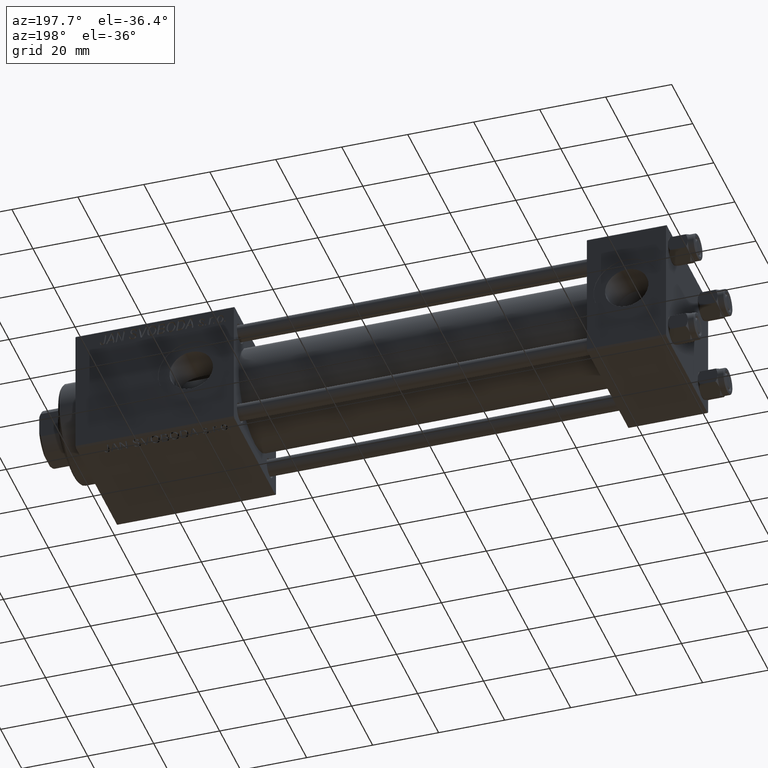
[diagram: clean part render]
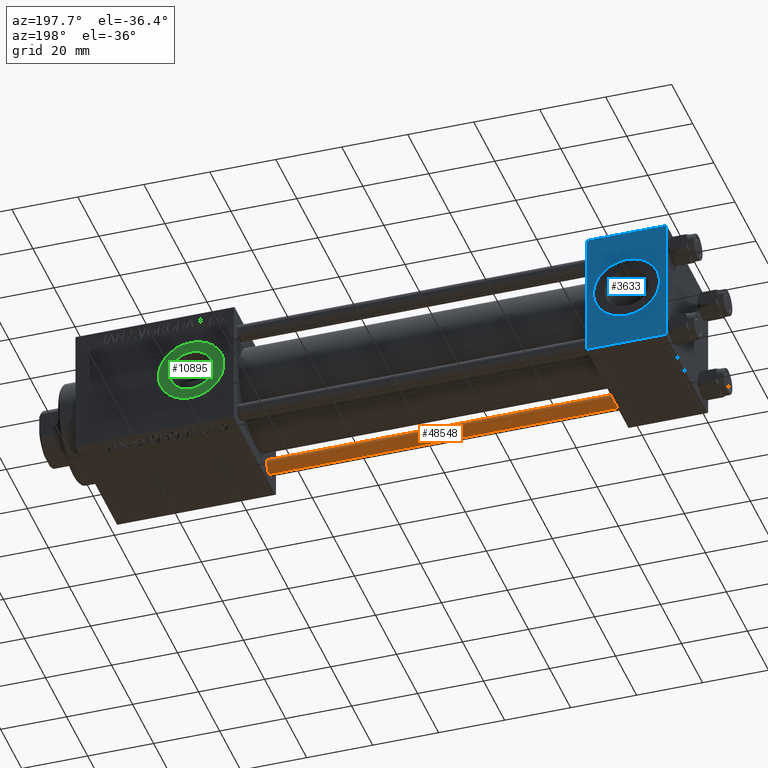
[diagram: same view with three faces highlighted in distinct colors, each labeled with its STEP entity id]
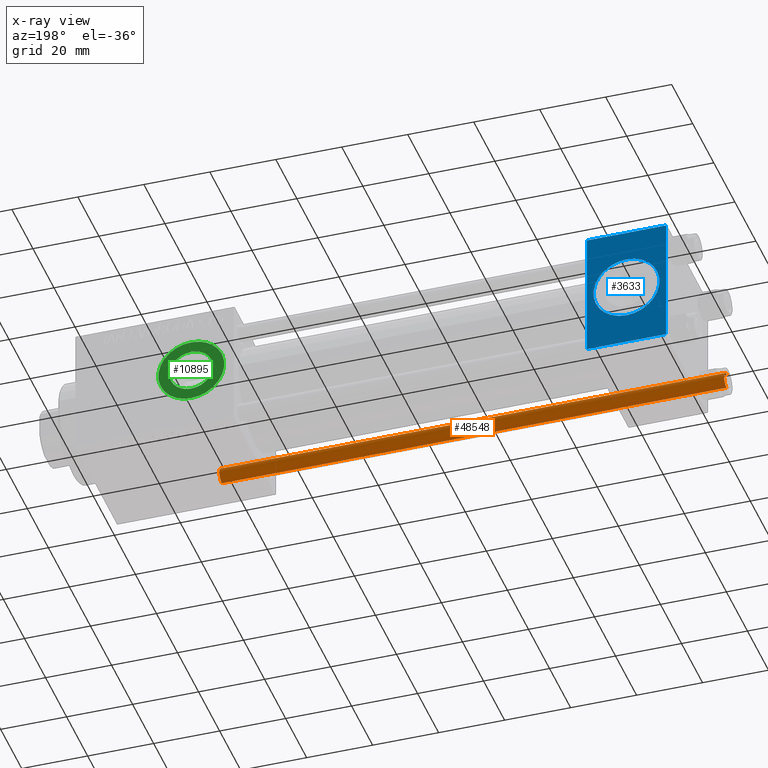
[diagram: x-ray of the same camera — body ghosted, the three highlighted faces saturated]
A machine part, auxiliary view with three faces highlighted in distinct colors.
The next image is the same camera in x-ray (body ghosted, the three faces saturated) — at least one of them is partly hidden behind the body in this view.
Their STEP definitions:

[orange] entity #48548 — the highlighted cylindrical surface (edge-blend (fillet) strip) has radius 2.5 mm, axis along (-1, -0, -0).
#17 = DIRECTION ( 'NONE',  ( -0.000000000000000000, -0.000000000000000000, -1.000000000000000000 ) ) ;
#1397 = EDGE_CURVE ( 'NONE', #17357, #28319, #20029, .T. ) ;
#2868 = ORIENTED_EDGE ( 'NONE', *, *, #3064, .T. ) ;
#3064 = EDGE_CURVE ( 'NONE', #17357, #41914, #39486, .T. ) ;
#4119 = EDGE_LOOP ( 'NONE', ( #27180, #2868, #19624, #48652 ) ) ;
#12100 = CARTESIAN_POINT ( 'NONE',  ( -2.500000000000000000, 0.000000000000000000, 154.0000000000000000 ) ) ;
#12159 = CARTESIAN_POINT ( 'NONE',  ( 0.000000000000000000, 0.000000000000000000, 154.0000000000000000 ) ) ;
#16716 = VECTOR ( 'NONE', #51994, 1000.000000000000000 ) ;
#17357 = VERTEX_POINT ( 'NONE', #46383 ) ;
#19624 = ORIENTED_EDGE ( 'NONE', *, *, #42432, .T. ) ;
#19762 = DIRECTION ( 'NONE',  ( -0.000000000000000000, -0.000000000000000000, -1.000000000000000000 ) ) ;
#20029 = LINE ( 'NONE', #48565, #16716 ) ;
#21790 = CIRCLE ( 'NONE', #51310, 2.500000000000000000 ) ;
#23476 = LINE ( 'NONE', #12100, #36938 ) ;
#24699 = CARTESIAN_POINT ( 'NONE',  ( -2.500000000000000000, 0.000000000000000000, 153.5000000000000284 ) ) ;
#25279 = DIRECTION ( 'NONE',  ( -0.000000000000000000, -0.000000000000000000, 1.000000000000000000 ) ) ;
#26803 = AXIS2_PLACEMENT_3D ( 'NONE', #47094, #42351, #42092 ) ;
#27180 = ORIENTED_EDGE ( 'NONE', *, *, #1397, .F. ) ;
#28283 = DIRECTION ( 'NONE',  ( -1.000000000000000000, 0.000000000000000000, 0.000000000000000000 ) ) ;
#28319 = VERTEX_POINT ( 'NONE', #38297 ) ;
#28529 = CYLINDRICAL_SURFACE ( 'NONE', #38552, 2.500000000000000000 ) ;
#29230 = DIRECTION ( 'NONE',  ( 1.000000000000000000, 0.000000000000000000, 0.000000000000000000 ) ) ;
#36938 = VECTOR ( 'NONE', #19762, 1000.000000000000000 ) ;
#38289 = CARTESIAN_POINT ( 'NONE',  ( -2.500000000000000000, 0.000000000000000000, 0.5000000000000281997 ) ) ;
#38297 = CARTESIAN_POINT ( 'NONE',  ( 2.500000000000000000, 3.061616997868383141E-16, 0.5000000000000281997 ) ) ;
#38552 = AXIS2_PLACEMENT_3D ( 'NONE', #12159, #17, #28283 ) ;
#39383 = EDGE_CURVE ( 'NONE', #48746, #28319, #21790, .T. ) ;
#39486 = CIRCLE ( 'NONE', #26803, 2.500000000000000000 ) ;
#41914 = VERTEX_POINT ( 'NONE', #24699 ) ;
#42092 = DIRECTION ( 'NONE',  ( 1.000000000000000000, 0.000000000000000000, 0.000000000000000000 ) ) ;
#42178 = CARTESIAN_POINT ( 'NONE',  ( 0.000000000000000000, 0.000000000000000000, 0.5000000000000281997 ) ) ;
#42351 = DIRECTION ( 'NONE',  ( 0.000000000000000000, 0.000000000000000000, -1.000000000000000000 ) ) ;
#42432 = EDGE_CURVE ( 'NONE', #41914, #48746, #23476, .T. ) ;
#46383 = CARTESIAN_POINT ( 'NONE',  ( 2.500000000000000000, 3.061616997868383141E-16, 153.5000000000000284 ) ) ;
#47094 = CARTESIAN_POINT ( 'NONE',  ( 0.000000000000000000, 0.000000000000000000, 153.5000000000000284 ) ) ;
#48361 = FACE_OUTER_BOUND ( 'NONE', #4119, .T. ) ;
#48548 = ADVANCED_FACE ( 'NONE', ( #48361 ), #28529, .T. ) ;
#48565 = CARTESIAN_POINT ( 'NONE',  ( 2.500000000000000000, 3.061616997868383141E-16, 154.0000000000000000 ) ) ;
#48652 = ORIENTED_EDGE ( 'NONE', *, *, #39383, .T. ) ;
#48746 = VERTEX_POINT ( 'NONE', #38289 ) ;
#51310 = AXIS2_PLACEMENT_3D ( 'NONE', #42178, #25279, #29230 ) ;
#51994 = DIRECTION ( 'NONE',  ( -0.000000000000000000, -0.000000000000000000, -1.000000000000000000 ) ) ;

[blue] entity #3633 — the highlighted planar face has unit normal (0, 1, 0).
#265 = ORIENTED_EDGE ( 'NONE', *, *, #40686, .T. ) ;
#937 = VERTEX_POINT ( 'NONE', #44789 ) ;
#1092 = ORIENTED_EDGE ( 'NONE', *, *, #31391, .F. ) ;
#2556 = VERTEX_POINT ( 'NONE', #50077 ) ;
#3510 = EDGE_LOOP ( 'NONE', ( #51776, #265, #1092, #41066 ) ) ;
#3633 = ADVANCED_FACE ( 'NONE', ( #19281, #27744 ), #44116, .T. ) ;
#4966 = CARTESIAN_POINT ( 'NONE',  ( 12.00000000000000000, 20.00000000000000000, 10.00000000000000000 ) ) ;
#5029 = DIRECTION ( 'NONE',  ( 0.000000000000000000, 1.000000000000000000, 0.000000000000000000 ) ) ;
#5084 = DIRECTION ( 'NONE',  ( 0.000000000000000000, 0.000000000000000000, -1.000000000000000000 ) ) ;
#7229 = EDGE_LOOP ( 'NONE', ( #39105, #31813 ) ) ;
#7915 = DIRECTION ( 'NONE',  ( 0.000000000000000000, -0.000000000000000000, 1.000000000000000000 ) ) ;
#8767 = LINE ( 'NONE', #24894, #35489 ) ;
#8929 = CARTESIAN_POINT ( 'NONE',  ( 0.000000000000000000, 20.00000000000000000, 20.00000000000000000 ) ) ;
#10107 = EDGE_CURVE ( 'NONE', #21586, #937, #8767, .T. ) ;
#12636 = EDGE_CURVE ( 'NONE', #17140, #21586, #31624, .T. ) ;
#12938 = CARTESIAN_POINT ( 'NONE',  ( 12.00000000000000000, 20.00000000000000000, 0.000000000000000000 ) ) ;
#17140 = VERTEX_POINT ( 'NONE', #36262 ) ;
#17446 = DIRECTION ( 'NONE',  ( 0.000000000000000000, 1.000000000000000000, 0.000000000000000000 ) ) ;
#18030 = AXIS2_PLACEMENT_3D ( 'NONE', #12938, #5029, #25102 ) ;
#18769 = EDGE_CURVE ( 'NONE', #2556, #50752, #41675, .T. ) ;
#19182 = DIRECTION ( 'NONE',  ( 1.000000000000000000, 0.000000000000000000, 0.000000000000000000 ) ) ;
#19215 = CARTESIAN_POINT ( 'NONE',  ( 24.00000000000000000, 20.00000000000000000, -19.50000000000002132 ) ) ;
#19281 = FACE_BOUND ( 'NONE', #7229, .T. ) ;
#19538 = DIRECTION ( 'NONE',  ( -0.000000000000000000, 1.000000000000000000, 0.000000000000000000 ) ) ;
#19740 = LINE ( 'NONE', #19215, #46321 ) ;
#21163 = DIRECTION ( 'NONE',  ( 0.000000000000000000, 0.000000000000000000, 1.000000000000000000 ) ) ;
#21586 = VERTEX_POINT ( 'NONE', #48512 ) ;
#22644 = CARTESIAN_POINT ( 'NONE',  ( 24.00000000000000000, 20.00000000000000000, 19.49999999999999289 ) ) ;
#24787 = EDGE_CURVE ( 'NONE', #50752, #2556, #35768, .T. ) ;
#24894 = CARTESIAN_POINT ( 'NONE',  ( 24.00000000000000000, 20.00000000000000000, 20.00000000000000000 ) ) ;
#25102 = DIRECTION ( 'NONE',  ( 0.000000000000000000, 0.000000000000000000, 1.000000000000000000 ) ) ;
#27156 = DIRECTION ( 'NONE',  ( -1.000000000000000000, 0.000000000000000000, 0.000000000000000000 ) ) ;
#27744 = FACE_OUTER_BOUND ( 'NONE', #3510, .T. ) ;
#29009 = LINE ( 'NONE', #8929, #33327 ) ;
#29547 = DIRECTION ( 'NONE',  ( 0.000000000000000000, 0.000000000000000000, -1.000000000000000000 ) ) ;
#31391 = EDGE_CURVE ( 'NONE', #17140, #45678, #29009, .T. ) ;
#31624 = LINE ( 'NONE', #22644, #42344 ) ;
#31813 = ORIENTED_EDGE ( 'NONE', *, *, #18769, .F. ) ;
#31966 = CARTESIAN_POINT ( 'NONE',  ( 24.00000000000000000, 20.00000000000000000, 20.00000000000000000 ) ) ;
#33327 = VECTOR ( 'NONE', #29547, 1000.000000000000000 ) ;
#33570 = CARTESIAN_POINT ( 'NONE',  ( 12.00000000000000000, 20.00000000000000000, 0.000000000000000000 ) ) ;
#35489 = VECTOR ( 'NONE', #5084, 1000.000000000000000 ) ;
#35768 = CIRCLE ( 'NONE', #18030, 10.00000000000000000 ) ;
#36262 = CARTESIAN_POINT ( 'NONE',  ( 0.000000000000000000, 20.00000000000000000, 19.49999999999999289 ) ) ;
#36607 = AXIS2_PLACEMENT_3D ( 'NONE', #33570, #17446, #21163 ) ;
#37790 = CARTESIAN_POINT ( 'NONE',  ( 0.000000000000000000, 20.00000000000000000, -19.50000000000002132 ) ) ;
#39105 = ORIENTED_EDGE ( 'NONE', *, *, #24787, .F. ) ;
#40686 = EDGE_CURVE ( 'NONE', #937, #45678, #19740, .T. ) ;
#41066 = ORIENTED_EDGE ( 'NONE', *, *, #12636, .T. ) ;
#41675 = CIRCLE ( 'NONE', #36607, 10.00000000000000000 ) ;
#42344 = VECTOR ( 'NONE', #19182, 1000.000000000000000 ) ;
#44116 = PLANE ( 'NONE',  #46237 ) ;
#44789 = CARTESIAN_POINT ( 'NONE',  ( 24.00000000000000000, 20.00000000000000000, -19.50000000000002132 ) ) ;
#45678 = VERTEX_POINT ( 'NONE', #37790 ) ;
#46237 = AXIS2_PLACEMENT_3D ( 'NONE', #31966, #19538, #7915 ) ;
#46321 = VECTOR ( 'NONE', #27156, 1000.000000000000000 ) ;
#48512 = CARTESIAN_POINT ( 'NONE',  ( 24.00000000000000000, 20.00000000000000000, 19.49999999999999289 ) ) ;
#50077 = CARTESIAN_POINT ( 'NONE',  ( 12.00000000000000178, 20.00000000000000000, -10.00000000000000000 ) ) ;
#50752 = VERTEX_POINT ( 'NONE', #4966 ) ;
#51776 = ORIENTED_EDGE ( 'NONE', *, *, #10107, .T. ) ;

[green] entity #10895 — the highlighted planar face has unit normal (0, 1, 0).
#355 = ORIENTED_EDGE ( 'NONE', *, *, #34814, .F. ) ;
#1649 = FACE_OUTER_BOUND ( 'NONE', #4758, .T. ) ;
#2432 = DIRECTION ( 'NONE',  ( 0.000000000000000000, -0.000000000000000000, 1.000000000000000000 ) ) ;
#3920 = AXIS2_PLACEMENT_3D ( 'NONE', #29010, #29272, #16580 ) ;
#4298 = EDGE_CURVE ( 'NONE', #43230, #24118, #29408, .T. ) ;
#4758 = EDGE_LOOP ( 'NONE', ( #22311, #38339 ) ) ;
#5145 = CARTESIAN_POINT ( 'NONE',  ( 144.0000000000000284, 19.79999999999999716, 6.580000000000015170 ) ) ;
#5820 = VERTEX_POINT ( 'NONE', #27772 ) ;
#7330 = EDGE_CURVE ( 'NONE', #24830, #5820, #12610, .T. ) ;
#9749 = CARTESIAN_POINT ( 'NONE',  ( 144.0000000000000284, 19.79999999999999716, 0.000000000000000000 ) ) ;
#9866 = DIRECTION ( 'NONE',  ( 0.000000000000000000, 0.000000000000000000, 1.000000000000000000 ) ) ;
#10895 = ADVANCED_FACE ( 'NONE', ( #50249, #1649 ), #22250, .T. ) ;
#11192 = CIRCLE ( 'NONE', #51670, 10.00000000000000888 ) ;
#12610 = CIRCLE ( 'NONE', #21911, 10.00000000000000888 ) ;
#13531 = EDGE_CURVE ( 'NONE', #5820, #24830, #11192, .T. ) ;
#14977 = DIRECTION ( 'NONE',  ( 0.000000000000000000, 0.000000000000000000, 1.000000000000000000 ) ) ;
#16380 = CARTESIAN_POINT ( 'NONE',  ( 144.0000000000000284, 19.79999999999999716, -10.00000000000000888 ) ) ;
#16580 = DIRECTION ( 'NONE',  ( 0.000000000000000000, 0.000000000000000000, 1.000000000000000000 ) ) ;
#21114 = DIRECTION ( 'NONE',  ( 0.000000000000000000, 1.000000000000000000, 0.000000000000000000 ) ) ;
#21911 = AXIS2_PLACEMENT_3D ( 'NONE', #50026, #41315, #9866 ) ;
#22250 = PLANE ( 'NONE',  #28755 ) ;
#22311 = ORIENTED_EDGE ( 'NONE', *, *, #13531, .T. ) ;
#22914 = CARTESIAN_POINT ( 'NONE',  ( 144.0000000000000284, 19.79999999999999716, 0.000000000000000000 ) ) ;
#24118 = VERTEX_POINT ( 'NONE', #5145 ) ;
#24830 = VERTEX_POINT ( 'NONE', #16380 ) ;
#26025 = AXIS2_PLACEMENT_3D ( 'NONE', #9749, #21114, #26137 ) ;
#26137 = DIRECTION ( 'NONE',  ( 0.000000000000000000, 0.000000000000000000, 1.000000000000000000 ) ) ;
#26700 = CIRCLE ( 'NONE', #3920, 6.580000000000015170 ) ;
#27772 = CARTESIAN_POINT ( 'NONE',  ( 144.0000000000000284, 19.79999999999999716, 10.00000000000000888 ) ) ;
#28272 = ORIENTED_EDGE ( 'NONE', *, *, #4298, .F. ) ;
#28421 = CARTESIAN_POINT ( 'NONE',  ( 144.0000000000000284, 19.79999999999999716, -6.580000000000015170 ) ) ;
#28755 = AXIS2_PLACEMENT_3D ( 'NONE', #38621, #34392, #2432 ) ;
#29010 = CARTESIAN_POINT ( 'NONE',  ( 144.0000000000000284, 19.79999999999999716, 0.000000000000000000 ) ) ;
#29272 = DIRECTION ( 'NONE',  ( 0.000000000000000000, 1.000000000000000000, 0.000000000000000000 ) ) ;
#29408 = CIRCLE ( 'NONE', #26025, 6.580000000000015170 ) ;
#33808 = EDGE_LOOP ( 'NONE', ( #355, #28272 ) ) ;
#34392 = DIRECTION ( 'NONE',  ( 0.000000000000000000, 1.000000000000000000, 0.000000000000000000 ) ) ;
#34814 = EDGE_CURVE ( 'NONE', #24118, #43230, #26700, .T. ) ;
#38339 = ORIENTED_EDGE ( 'NONE', *, *, #7330, .T. ) ;
#38621 = CARTESIAN_POINT ( 'NONE',  ( 144.0000000000000284, 19.79999999999999716, 0.000000000000000000 ) ) ;
#39033 = DIRECTION ( 'NONE',  ( 0.000000000000000000, 1.000000000000000000, 0.000000000000000000 ) ) ;
#41315 = DIRECTION ( 'NONE',  ( 0.000000000000000000, 1.000000000000000000, 0.000000000000000000 ) ) ;
#43230 = VERTEX_POINT ( 'NONE', #28421 ) ;
#50026 = CARTESIAN_POINT ( 'NONE',  ( 144.0000000000000284, 19.79999999999999716, 0.000000000000000000 ) ) ;
#50249 = FACE_BOUND ( 'NONE', #33808, .T. ) ;
#51670 = AXIS2_PLACEMENT_3D ( 'NONE', #22914, #39033, #14977 ) ;